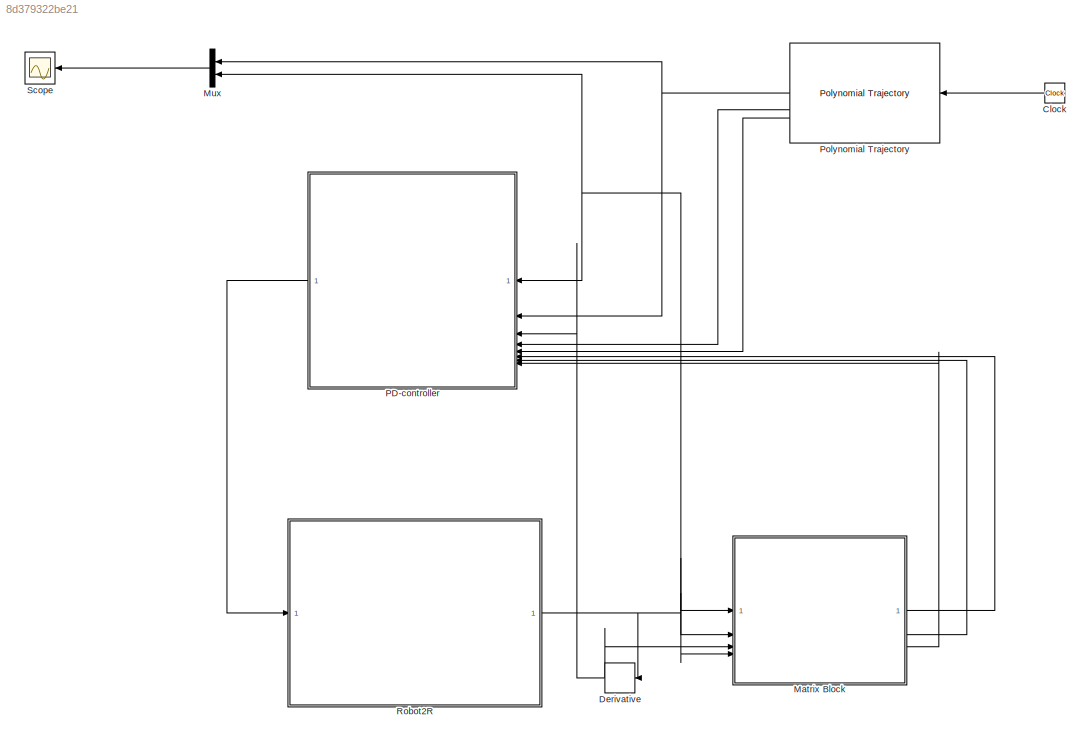
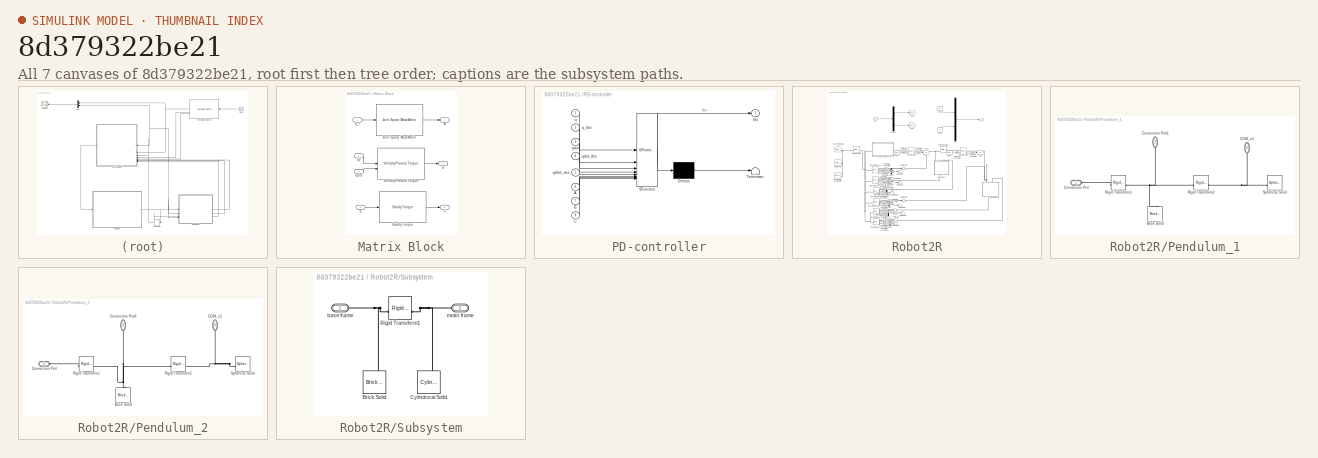
[diagram: thumbnail index - all 7 canvases of the model, root first then tree order]
MODEL slx_8d379322be21
KIND model
CONFIG AbsTol = 1e-3
CONFIG EnableMultiTasking = on
CONFIG FixedStep = auto
CONFIG MaxStep = auto
CONFIG MinStep = auto
CONFIG RelTol = 1e-3
CONFIG SampleTimeConstraint = Unconstrained
CONFIG SolverName = VariableStepAuto
CONFIG StartTime = 0.0
CONFIG StopTime = 20
BLOCK [Clock] Clock
BLOCK [Derivative] Derivative
BLOCK [SubSystem] Matrix Block
BLOCK [Outport] Matrix Block/A
BLOCK [Outport] Matrix Block/B
  Port = 2
BLOCK [Outport] Matrix Block/C
  Port = 3
BLOCK [Reference] Matrix Block/Gravity Torque  REF=robotmaniplib/Gravity Torque
  SourceBlock = robotmaniplib/Gravity Torque
  SourceType = Gravity Torque
BLOCK [Reference] Matrix Block/Joint Space Mass Matrix  REF=robotmaniplib/Joint Space Mass Matrix
  SourceBlock = robotmaniplib/Joint Space Mass Matrix
  SourceType = Joint Space Mass Matrix
BLOCK [Reference] Matrix Block/Velocity Product Torque  REF=robotmaniplib/Velocity Product Torque
  SourceBlock = robotmaniplib/Velocity Product Torque
  SourceType = Velocity Product Torque
BLOCK [Inport] Matrix Block/q
  Port = 4
BLOCK [Inport] Matrix Block/q_r
BLOCK [Inport] Matrix Block/qdot
  Port = 3
BLOCK [Inport] Matrix Block/qr
  Port = 2
BLOCK [Mux] Mux
  DisplayOption = bar
  Inputs = 2
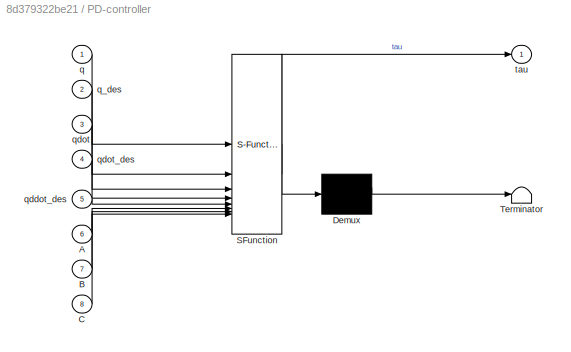
BLOCK [SubSystem] PD-controller
  ErrorFcn = Stateflow.Translate.translate
  LibrarySourceBlock = simulink/User-Defined\nFunctions/MATLAB Function
  PermitHierarchicalResolution = ExplicitOnly
  SFBlockType = MATLAB Function
  TreatAsAtomicUnit = on
BLOCK [Demux] PD-controller/ Demux 
  Outputs = 1
BLOCK [S-Function] PD-controller/ SFunction 
  EnableBusSupport = on
  FunctionName = sf_sfun
  PortCounts = [8 2]
  SFcnIsStateOwnerBlock = off
  SFunctionDeploymentMode = off
  Tag = Stateflow S-Function 1
BLOCK [Terminator] PD-controller/ Terminator 
BLOCK [Inport] PD-controller/A
  Port = 6
BLOCK [Inport] PD-controller/B
  Port = 7
BLOCK [Inport] PD-controller/C
  Port = 8
BLOCK [Inport] PD-controller/q
BLOCK [Inport] PD-controller/q_des
  Port = 2
BLOCK [Inport] PD-controller/qddot_des
  Port = 5
BLOCK [Inport] PD-controller/qdot
  Port = 3
BLOCK [Inport] PD-controller/qdot_des
  Port = 4
BLOCK [Outport] PD-controller/tau
BLOCK [Reference] Polynomial Trajectory  REF=robotcorelib/Polynomial Trajectory
  LibrarySourceBlock = robotutilslib/Polynomial Trajectory
  SourceBlock = robotcorelib/Polynomial Trajectory
  SourceType = robotics.slcore.internal.block.PolyTrajSys
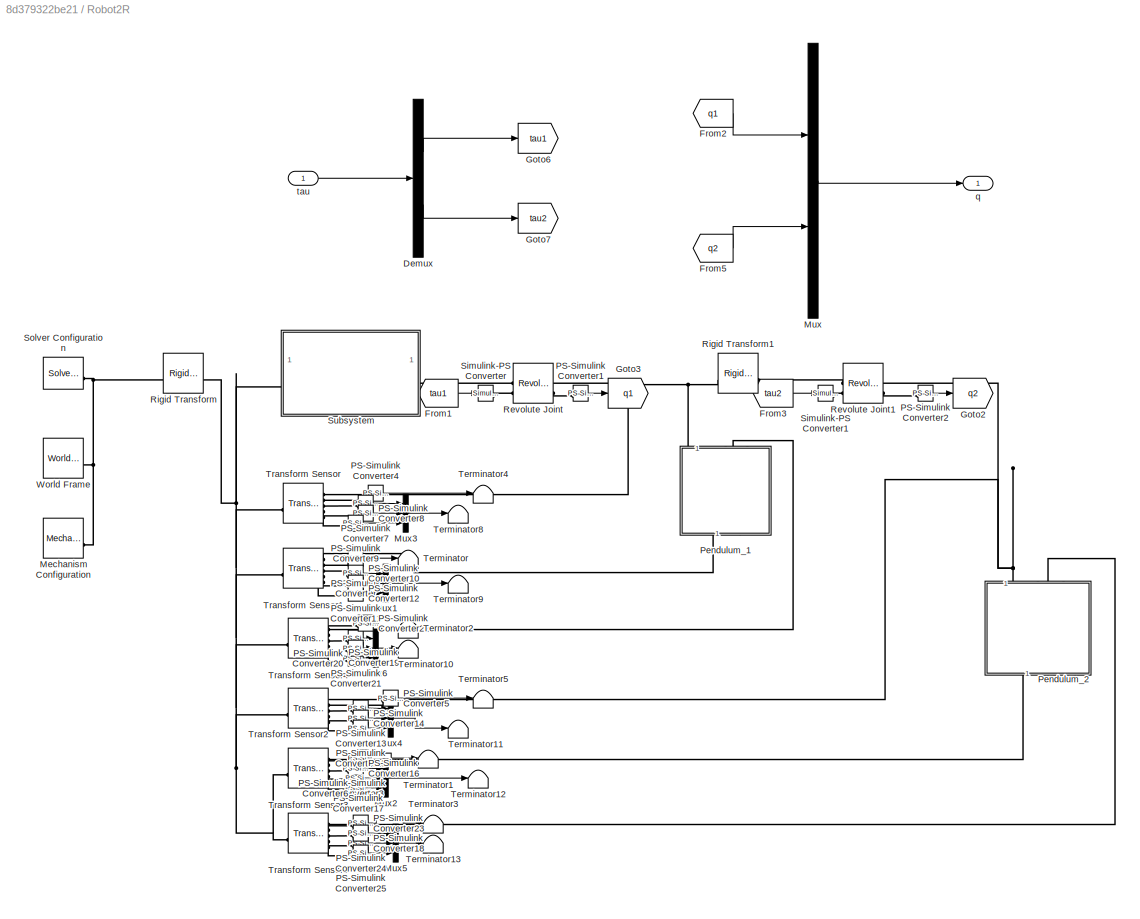
BLOCK [SubSystem] Robot2R
BLOCK [Demux] Robot2R/Demux
  Outputs = 2
BLOCK [From] Robot2R/From1
  GotoTag = tau1
BLOCK [From] Robot2R/From2
  GotoTag = q1
BLOCK [From] Robot2R/From3
  GotoTag = tau2
BLOCK [From] Robot2R/From5
  GotoTag = q2
BLOCK [Goto] Robot2R/Goto2
  GotoTag = q2
BLOCK [Goto] Robot2R/Goto3
  GotoTag = q1
BLOCK [Goto] Robot2R/Goto6
  GotoTag = tau1
BLOCK [Goto] Robot2R/Goto7
  GotoTag = tau2
BLOCK [Reference] Robot2R/Mechanism Configuration  REF=sm_lib/Utilities/Mechanism
Configuration
  SourceBlock = sm_lib/Utilities/Mechanism\nConfiguration
  SourceType = Mechanism\nConfiguration
BLOCK [Mux] Robot2R/Mux
  DisplayOption = bar
  Inputs = 2
BLOCK [Mux] Robot2R/Mux1
  DisplayOption = bar
  Inputs = 3
BLOCK [Mux] Robot2R/Mux2
  DisplayOption = bar
  Inputs = 3
BLOCK [Mux] Robot2R/Mux3
  DisplayOption = bar
  Inputs = 3
BLOCK [Mux] Robot2R/Mux4
  DisplayOption = bar
  Inputs = 3
BLOCK [Mux] Robot2R/Mux5
  DisplayOption = bar
  Inputs = 3
BLOCK [Mux] Robot2R/Mux6
  DisplayOption = bar
  Inputs = 3
BLOCK [Reference] Robot2R/PS-Simulink Converter  REF=nesl_utility/PS-Simulink
Converter
  SourceBlock = nesl_utility/PS-Simulink\nConverter
  SourceType = PS-Simulink\nConverter
BLOCK [Reference] Robot2R/PS-Simulink Converter1  REF=nesl_utility/PS-Simulink
Converter
  SourceBlock = nesl_utility/PS-Simulink\nConverter
  SourceType = PS-Simulink\nConverter
BLOCK [Reference] Robot2R/PS-Simulink Converter10  REF=nesl_utility/PS-Simulink
Converter
  SourceBlock = nesl_utility/PS-Simulink\nConverter
  SourceType = PS-Simulink\nConverter
BLOCK [Reference] Robot2R/PS-Simulink Converter11  REF=nesl_utility/PS-Simulink
Converter
  SourceBlock = nesl_utility/PS-Simulink\nConverter
  SourceType = PS-Simulink\nConverter
BLOCK [Reference] Robot2R/PS-Simulink Converter12  REF=nesl_utility/PS-Simulink
Converter
  SourceBlock = nesl_utility/PS-Simulink\nConverter
  SourceType = PS-Simulink\nConverter
BLOCK [Reference] Robot2R/PS-Simulink Converter13  REF=nesl_utility/PS-Simulink
Converter
  SourceBlock = nesl_utility/PS-Simulink\nConverter
  SourceType = PS-Simulink\nConverter
BLOCK [Reference] Robot2R/PS-Simulink Converter14  REF=nesl_utility/PS-Simulink
Converter
  SourceBlock = nesl_utility/PS-Simulink\nConverter
  SourceType = PS-Simulink\nConverter
BLOCK [Reference] Robot2R/PS-Simulink Converter15  REF=nesl_utility/PS-Simulink
Converter
  SourceBlock = nesl_utility/PS-Simulink\nConverter
  SourceType = PS-Simulink\nConverter
BLOCK [Reference] Robot2R/PS-Simulink Converter16  REF=nesl_utility/PS-Simulink
Converter
  SourceBlock = nesl_utility/PS-Simulink\nConverter
  SourceType = PS-Simulink\nConverter
BLOCK [Reference] Robot2R/PS-Simulink Converter17  REF=nesl_utility/PS-Simulink
Converter
  SourceBlock = nesl_utility/PS-Simulink\nConverter
  SourceType = PS-Simulink\nConverter
BLOCK [Reference] Robot2R/PS-Simulink Converter18  REF=nesl_utility/PS-Simulink
Converter
  SourceBlock = nesl_utility/PS-Simulink\nConverter
  SourceType = PS-Simulink\nConverter
BLOCK [Reference] Robot2R/PS-Simulink Converter19  REF=nesl_utility/PS-Simulink
Converter
  SourceBlock = nesl_utility/PS-Simulink\nConverter
  SourceType = PS-Simulink\nConverter
BLOCK [Reference] Robot2R/PS-Simulink Converter2  REF=nesl_utility/PS-Simulink
Converter
  SourceBlock = nesl_utility/PS-Simulink\nConverter
  SourceType = PS-Simulink\nConverter
BLOCK [Reference] Robot2R/PS-Simulink Converter20  REF=nesl_utility/PS-Simulink
Converter
  SourceBlock = nesl_utility/PS-Simulink\nConverter
  SourceType = PS-Simulink\nConverter
BLOCK [Reference] Robot2R/PS-Simulink Converter21  REF=nesl_utility/PS-Simulink
Converter
  SourceBlock = nesl_utility/PS-Simulink\nConverter
  SourceType = PS-Simulink\nConverter
BLOCK [Reference] Robot2R/PS-Simulink Converter22  REF=nesl_utility/PS-Simulink
Converter
  SourceBlock = nesl_utility/PS-Simulink\nConverter
  SourceType = PS-Simulink\nConverter
BLOCK [Reference] Robot2R/PS-Simulink Converter23  REF=nesl_utility/PS-Simulink
Converter
  SourceBlock = nesl_utility/PS-Simulink\nConverter
  SourceType = PS-Simulink\nConverter
BLOCK [Reference] Robot2R/PS-Simulink Converter24  REF=nesl_utility/PS-Simulink
Converter
  SourceBlock = nesl_utility/PS-Simulink\nConverter
  SourceType = PS-Simulink\nConverter
BLOCK [Reference] Robot2R/PS-Simulink Converter25  REF=nesl_utility/PS-Simulink
Converter
  SourceBlock = nesl_utility/PS-Simulink\nConverter
  SourceType = PS-Simulink\nConverter
BLOCK [Reference] Robot2R/PS-Simulink Converter3  REF=nesl_utility/PS-Simulink
Converter
  SourceBlock = nesl_utility/PS-Simulink\nConverter
  SourceType = PS-Simulink\nConverter
BLOCK [Reference] Robot2R/PS-Simulink Converter4  REF=nesl_utility/PS-Simulink
Converter
  SourceBlock = nesl_utility/PS-Simulink\nConverter
  SourceType = PS-Simulink\nConverter
BLOCK [Reference] Robot2R/PS-Simulink Converter5  REF=nesl_utility/PS-Simulink
Converter
  SourceBlock = nesl_utility/PS-Simulink\nConverter
  SourceType = PS-Simulink\nConverter
BLOCK [Reference] Robot2R/PS-Simulink Converter6  REF=nesl_utility/PS-Simulink
Converter
  SourceBlock = nesl_utility/PS-Simulink\nConverter
  SourceType = PS-Simulink\nConverter
BLOCK [Reference] Robot2R/PS-Simulink Converter7  REF=nesl_utility/PS-Simulink
Converter
  SourceBlock = nesl_utility/PS-Simulink\nConverter
  SourceType = PS-Simulink\nConverter
BLOCK [Reference] Robot2R/PS-Simulink Converter8  REF=nesl_utility/PS-Simulink
Converter
  SourceBlock = nesl_utility/PS-Simulink\nConverter
  SourceType = PS-Simulink\nConverter
BLOCK [Reference] Robot2R/PS-Simulink Converter9  REF=nesl_utility/PS-Simulink
Converter
  SourceBlock = nesl_utility/PS-Simulink\nConverter
  SourceType = PS-Simulink\nConverter
BLOCK [SubSystem] Robot2R/Pendulum_1
  NameLocation = left
BLOCK [Reference] Robot2R/Pendulum_1/Brick Solid  REF=sm_lib/Body Elements/Brick Solid
  NameLocation = right
  SourceBlock = sm_lib/Body Elements/Brick Solid
  SourceType = Brick Solid
BLOCK [PMIOPort] Robot2R/Pendulum_1/COM_s1
  NameLocation = left
  Port = 3
  Side = Left
BLOCK [PMIOPort] Robot2R/Pendulum_1/Connection Port
  Side = Left
BLOCK [PMIOPort] Robot2R/Pendulum_1/Connection Port1
  NameLocation = left
  Port = 2
  Side = Right
BLOCK [Reference] Robot2R/Pendulum_1/Rigid Transform1  REF=sm_lib/Frames and
Transforms/Rigid
Transform
  SourceBlock = sm_lib/Frames and\nTransforms/Rigid\nTransform
  SourceType = Rigid\nTransform
BLOCK [Reference] Robot2R/Pendulum_1/Rigid Transform2  REF=sm_lib/Frames and
Transforms/Rigid
Transform
  SourceBlock = sm_lib/Frames and\nTransforms/Rigid\nTransform
  SourceType = Rigid\nTransform
BLOCK [Reference] Robot2R/Pendulum_1/Spherical Solid  REF=sm_lib/Body Elements/Spherical Solid
  SourceBlock = sm_lib/Body Elements/Spherical Solid
  SourceType = Spherical Solid
BLOCK [SubSystem] Robot2R/Pendulum_2
  NameLocation = left
BLOCK [Reference] Robot2R/Pendulum_2/Brick Solid  REF=sm_lib/Body Elements/Brick Solid
  NameLocation = right
  SourceBlock = sm_lib/Body Elements/Brick Solid
  SourceType = Brick Solid
BLOCK [PMIOPort] Robot2R/Pendulum_2/COM_s2
  NameLocation = left
  Port = 3
  Side = Left
BLOCK [PMIOPort] Robot2R/Pendulum_2/Connection Port
  Side = Left
BLOCK [PMIOPort] Robot2R/Pendulum_2/Connection Port1
  NameLocation = left
  Port = 2
  Side = Right
BLOCK [Reference] Robot2R/Pendulum_2/Rigid Transform1  REF=sm_lib/Frames and
Transforms/Rigid
Transform
  SourceBlock = sm_lib/Frames and\nTransforms/Rigid\nTransform
  SourceType = Rigid\nTransform
BLOCK [Reference] Robot2R/Pendulum_2/Rigid Transform2  REF=sm_lib/Frames and
Transforms/Rigid
Transform
  SourceBlock = sm_lib/Frames and\nTransforms/Rigid\nTransform
  SourceType = Rigid\nTransform
BLOCK [Reference] Robot2R/Pendulum_2/Spherical Solid  REF=sm_lib/Body Elements/Spherical Solid
  SourceBlock = sm_lib/Body Elements/Spherical Solid
  SourceType = Spherical Solid
BLOCK [Reference] Robot2R/Revolute Joint  REF=sm_lib/Joints/Revolute Joint
  SourceBlock = sm_lib/Joints/Revolute Joint
  SourceType = Revolute Joint
BLOCK [Reference] Robot2R/Revolute Joint1  REF=sm_lib/Joints/Revolute Joint
  SourceBlock = sm_lib/Joints/Revolute Joint
  SourceType = Revolute Joint
BLOCK [Reference] Robot2R/Rigid Transform  REF=sm_lib/Frames and
Transforms/Rigid
Transform
  SourceBlock = sm_lib/Frames and\nTransforms/Rigid\nTransform
  SourceType = Rigid\nTransform
BLOCK [Reference] Robot2R/Rigid Transform1  REF=sm_lib/Frames and
Transforms/Rigid
Transform
  SourceBlock = sm_lib/Frames and\nTransforms/Rigid\nTransform
  SourceType = Rigid\nTransform
BLOCK [Reference] Robot2R/Simulink-PS Converter  REF=nesl_utility/Simulink-PS
Converter
  SourceBlock = nesl_utility/Simulink-PS\nConverter
  SourceType = Simulink-PS\nConverter
BLOCK [Reference] Robot2R/Simulink-PS Converter1  REF=nesl_utility/Simulink-PS
Converter
  SourceBlock = nesl_utility/Simulink-PS\nConverter
  SourceType = Simulink-PS\nConverter
BLOCK [Reference] Robot2R/Solver Configuration  REF=nesl_utility/Solver
Configuration
  SourceBlock = nesl_utility/Solver\nConfiguration
  SourceType = Solver\nConfiguration
BLOCK [SubSystem] Robot2R/Subsystem
BLOCK [Reference] Robot2R/Subsystem/Brick Solid  REF=sm_lib/Body Elements/Brick Solid
  SourceBlock = sm_lib/Body Elements/Brick Solid
  SourceType = Brick Solid
BLOCK [Reference] Robot2R/Subsystem/Cylindrical Solid  REF=sm_lib/Body Elements/Cylindrical Solid
  NameLocation = right
  SourceBlock = sm_lib/Body Elements/Cylindrical Solid
  SourceType = Cylindrical Solid
BLOCK [Reference] Robot2R/Subsystem/Rigid Transform1  REF=sm_lib/Frames and
Transforms/Rigid
Transform
  SourceBlock = sm_lib/Frames and\nTransforms/Rigid\nTransform
  SourceType = Rigid\nTransform
BLOCK [PMIOPort] Robot2R/Subsystem/base frame
  Side = Left
BLOCK [PMIOPort] Robot2R/Subsystem/motor frame
  Port = 2
  Side = Right
BLOCK [Terminator] Robot2R/Terminator
BLOCK [Terminator] Robot2R/Terminator1
BLOCK [Terminator] Robot2R/Terminator10
BLOCK [Terminator] Robot2R/Terminator11
BLOCK [Terminator] Robot2R/Terminator12
BLOCK [Terminator] Robot2R/Terminator13
BLOCK [Terminator] Robot2R/Terminator2
BLOCK [Terminator] Robot2R/Terminator3
BLOCK [Terminator] Robot2R/Terminator4
BLOCK [Terminator] Robot2R/Terminator5
BLOCK [Terminator] Robot2R/Terminator8
BLOCK [Terminator] Robot2R/Terminator9
BLOCK [Reference] Robot2R/Transform Sensor  REF=sm_lib/Frames and
Transforms/Transform
Sensor
  SourceBlock = sm_lib/Frames and\nTransforms/Transform\nSensor
  SourceType = Transform\nSensor
BLOCK [Reference] Robot2R/Transform Sensor1  REF=sm_lib/Frames and
Transforms/Transform
Sensor
  SourceBlock = sm_lib/Frames and\nTransforms/Transform\nSensor
  SourceType = Transform\nSensor
BLOCK [Reference] Robot2R/Transform Sensor2  REF=sm_lib/Frames and
Transforms/Transform
Sensor
  SourceBlock = sm_lib/Frames and\nTransforms/Transform\nSensor
  SourceType = Transform\nSensor
BLOCK [Reference] Robot2R/Transform Sensor3  REF=sm_lib/Frames and
Transforms/Transform
Sensor
  SourceBlock = sm_lib/Frames and\nTransforms/Transform\nSensor
  SourceType = Transform\nSensor
BLOCK [Reference] Robot2R/Transform Sensor4  REF=sm_lib/Frames and
Transforms/Transform
Sensor
  SourceBlock = sm_lib/Frames and\nTransforms/Transform\nSensor
  SourceType = Transform\nSensor
BLOCK [Reference] Robot2R/Transform Sensor5  REF=sm_lib/Frames and
Transforms/Transform
Sensor
  SourceBlock = sm_lib/Frames and\nTransforms/Transform\nSensor
  SourceType = Transform\nSensor
BLOCK [Reference] Robot2R/World Frame  REF=sm_lib/Frames and
Transforms/World Frame
  SourceBlock = sm_lib/Frames and\nTransforms/World Frame
  SourceType = World Frame
BLOCK [Outport] Robot2R/q
BLOCK [Inport] Robot2R/tau
BLOCK [Scope] Scope
  Floating = off
  NumInputPorts = 1
  ScopeSpecificationString = Simulink.scopes.TimeScopeBlockCfg('CurrentConfiguration', extmgr.ConfigurationSet(extmgr.Configuration('Core','General UI',true),extmgr.Configuration('Core','Source UI',true),extmgr.Configuration('Sources','WiredSimulink',true),extmgr.Configuration('Visuals','Time Domain',true,'SerializedDisplays',{struct('MinYLimReal','-1.21085','MaxYLimReal','3.04366','YLabelReal','','MinYLimMag','0.00000','MaxY...<+1544ch>
LINE Clock:1 -> Polynomial Trajectory:1
NET Derivative:1 -> Matrix Block:3, PD-controller:3
LINE Matrix Block/Gravity Torque:1 -> Matrix Block/C:1
LINE Matrix Block/Joint Space Mass Matrix:1 -> Matrix Block/A:1
LINE Matrix Block/Velocity Product Torque:1 -> Matrix Block/B:1
LINE Matrix Block/q:1 -> Matrix Block/Gravity Torque:1
LINE Matrix Block/q_r:1 -> Matrix Block/Joint Space Mass Matrix:1
LINE Matrix Block/qdot:1 -> Matrix Block/Velocity Product Torque:2
LINE Matrix Block/qr:1 -> Matrix Block/Velocity Product Torque:1
LINE Matrix Block:1 -> PD-controller:6
LINE Matrix Block:2 -> PD-controller:7
LINE Matrix Block:3 -> PD-controller:8
LINE Mux:1 -> Scope:1
LINE PD-controller:1 -> Robot2R:1
NET Polynomial Trajectory:1 -> Mux:1, PD-controller:2
LINE Polynomial Trajectory:2 -> PD-controller:4
LINE Polynomial Trajectory:3 -> PD-controller:5
LINE Robot2R/Demux:1 -> Robot2R/Goto6:1
LINE Robot2R/Demux:2 -> Robot2R/Goto7:1
LINE Robot2R/From1:1 -> Robot2R/Simulink-PS Converter:1
LINE Robot2R/From2:1 -> Robot2R/Mux:1
LINE Robot2R/From3:1 -> Robot2R/Simulink-PS Converter1:1
LINE Robot2R/From5:1 -> Robot2R/Mux:2
LINE Robot2R/Mux1:1 -> Robot2R/Terminator9:1
LINE Robot2R/Mux2:1 -> Robot2R/Terminator12:1
LINE Robot2R/Mux3:1 -> Robot2R/Terminator8:1
LINE Robot2R/Mux4:1 -> Robot2R/Terminator11:1
LINE Robot2R/Mux5:1 -> Robot2R/Terminator13:1
LINE Robot2R/Mux6:1 -> Robot2R/Terminator10:1
LINE Robot2R/Mux:1 -> Robot2R/q:1
LINE Robot2R/PS-Simulink Converter10:1 -> Robot2R/Mux1:1
LINE Robot2R/PS-Simulink Converter11:1 -> Robot2R/Mux1:2
LINE Robot2R/PS-Simulink Converter12:1 -> Robot2R/Mux1:3
LINE Robot2R/PS-Simulink Converter13:1 -> Robot2R/Mux4:1
LINE Robot2R/PS-Simulink Converter14:1 -> Robot2R/Mux4:2
LINE Robot2R/PS-Simulink Converter15:1 -> Robot2R/Mux4:3
LINE Robot2R/PS-Simulink Converter16:1 -> Robot2R/Mux2:1
LINE Robot2R/PS-Simulink Converter17:1 -> Robot2R/Mux2:2
LINE Robot2R/PS-Simulink Converter18:1 -> Robot2R/Mux5:2
LINE Robot2R/PS-Simulink Converter19:1 -> Robot2R/Mux6:1
LINE Robot2R/PS-Simulink Converter1:1 -> Robot2R/Goto3:1
LINE Robot2R/PS-Simulink Converter20:1 -> Robot2R/Mux6:3
LINE Robot2R/PS-Simulink Converter21:1 -> Robot2R/Mux6:2
LINE Robot2R/PS-Simulink Converter22:1 -> Robot2R/Terminator2:1
LINE Robot2R/PS-Simulink Converter23:1 -> Robot2R/Terminator3:1
LINE Robot2R/PS-Simulink Converter24:1 -> Robot2R/Mux5:1
LINE Robot2R/PS-Simulink Converter25:1 -> Robot2R/Mux5:3
LINE Robot2R/PS-Simulink Converter2:1 -> Robot2R/Goto2:1
LINE Robot2R/PS-Simulink Converter3:1 -> Robot2R/Terminator1:1
LINE Robot2R/PS-Simulink Converter4:1 -> Robot2R/Terminator4:1
LINE Robot2R/PS-Simulink Converter5:1 -> Robot2R/Terminator5:1
LINE Robot2R/PS-Simulink Converter6:1 -> Robot2R/Mux2:3
LINE Robot2R/PS-Simulink Converter7:1 -> Robot2R/Mux3:1
LINE Robot2R/PS-Simulink Converter8:1 -> Robot2R/Mux3:2
LINE Robot2R/PS-Simulink Converter9:1 -> Robot2R/Mux3:3
LINE Robot2R/PS-Simulink Converter:1 -> Robot2R/Terminator:1
LINE Robot2R/tau:1 -> Robot2R/Demux:1
NET Robot2R:1 -> Derivative:1, Matrix Block:1, Matrix Block:2, Matrix Block:4, Mux:2, PD-controller:1
PNET net1: Robot2R/Mechanism Configuration:RConn1 -- Robot2R/Rigid Transform:LConn1 -- Robot2R/Solver Configuration:RConn1 -- Robot2R/World Frame:RConn1
PLINE Robot2R/PS-Simulink Converter10:LConn1 -- Robot2R/Transform Sensor1:RConn3
PLINE Robot2R/PS-Simulink Converter11:LConn1 -- Robot2R/Transform Sensor1:RConn4
PLINE Robot2R/PS-Simulink Converter12:LConn1 -- Robot2R/Transform Sensor1:RConn5
PLINE Robot2R/PS-Simulink Converter13:LConn1 -- Robot2R/Transform Sensor2:RConn3
PLINE Robot2R/PS-Simulink Converter14:LConn1 -- Robot2R/Transform Sensor2:RConn4
PLINE Robot2R/PS-Simulink Converter15:LConn1 -- Robot2R/Transform Sensor2:RConn5
PLINE Robot2R/PS-Simulink Converter16:LConn1 -- Robot2R/Transform Sensor3:RConn3
PLINE Robot2R/PS-Simulink Converter17:LConn1 -- Robot2R/Transform Sensor3:RConn4
PLINE Robot2R/PS-Simulink Converter18:LConn1 -- Robot2R/Transform Sensor5:RConn4
PLINE Robot2R/PS-Simulink Converter19:LConn1 -- Robot2R/Transform Sensor4:RConn3
PLINE Robot2R/PS-Simulink Converter1:LConn1 -- Robot2R/Revolute Joint:RConn2
PLINE Robot2R/PS-Simulink Converter20:LConn1 -- Robot2R/Transform Sensor4:RConn5
PLINE Robot2R/PS-Simulink Converter21:LConn1 -- Robot2R/Transform Sensor4:RConn4
PLINE Robot2R/PS-Simulink Converter22:LConn1 -- Robot2R/Transform Sensor4:RConn2
PLINE Robot2R/PS-Simulink Converter23:LConn1 -- Robot2R/Transform Sensor5:RConn2
PLINE Robot2R/PS-Simulink Converter24:LConn1 -- Robot2R/Transform Sensor5:RConn3
PLINE Robot2R/PS-Simulink Converter25:LConn1 -- Robot2R/Transform Sensor5:RConn5
PLINE Robot2R/PS-Simulink Converter2:LConn1 -- Robot2R/Revolute Joint1:RConn2
PLINE Robot2R/PS-Simulink Converter3:LConn1 -- Robot2R/Transform Sensor3:RConn2
PLINE Robot2R/PS-Simulink Converter4:LConn1 -- Robot2R/Transform Sensor:RConn2
PLINE Robot2R/PS-Simulink Converter5:LConn1 -- Robot2R/Transform Sensor2:RConn2
PLINE Robot2R/PS-Simulink Converter6:LConn1 -- Robot2R/Transform Sensor3:RConn5
PLINE Robot2R/PS-Simulink Converter7:LConn1 -- Robot2R/Transform Sensor:RConn3
PLINE Robot2R/PS-Simulink Converter8:LConn1 -- Robot2R/Transform Sensor:RConn4
PLINE Robot2R/PS-Simulink Converter9:LConn1 -- Robot2R/Transform Sensor:RConn5
PLINE Robot2R/PS-Simulink Converter:LConn1 -- Robot2R/Transform Sensor1:RConn2
PNET net2: Robot2R/Pendulum_1/Brick Solid:RConn1 -- Robot2R/Pendulum_1/Connection Port1:RConn1 -- Robot2R/Pendulum_1/Rigid Transform1:LConn1 -- Robot2R/Pendulum_1/Rigid Transform2:LConn1
PNET net3: Robot2R/Pendulum_1/COM_s1:RConn1 -- Robot2R/Pendulum_1/Rigid Transform2:RConn1 -- Robot2R/Pendulum_1/Spherical Solid:RConn1
PLINE Robot2R/Pendulum_1/Connection Port:RConn1 -- Robot2R/Pendulum_1/Rigid Transform1:RConn1
PNET net4: Robot2R/Pendulum_1:LConn1 -- Robot2R/Revolute Joint:RConn1 -- Robot2R/Rigid Transform1:LConn1 -- Robot2R/Transform Sensor:RConn1
PLINE Robot2R/Pendulum_1:LConn2 -- Robot2R/Transform Sensor4:RConn1
PLINE Robot2R/Pendulum_1:RConn1 -- Robot2R/Transform Sensor1:RConn1
PNET net5: Robot2R/Pendulum_2/Brick Solid:RConn1 -- Robot2R/Pendulum_2/Connection Port1:RConn1 -- Robot2R/Pendulum_2/Rigid Transform1:LConn1 -- Robot2R/Pendulum_2/Rigid Transform2:LConn1
PNET net6: Robot2R/Pendulum_2/COM_s2:RConn1 -- Robot2R/Pendulum_2/Rigid Transform2:RConn1 -- Robot2R/Pendulum_2/Spherical Solid:RConn1
PLINE Robot2R/Pendulum_2/Connection Port:RConn1 -- Robot2R/Pendulum_2/Rigid Transform1:RConn1
PNET net7: Robot2R/Pendulum_2:LConn1 -- Robot2R/Revolute Joint1:RConn1 -- Robot2R/Transform Sensor2:RConn1
PLINE Robot2R/Pendulum_2:LConn2 -- Robot2R/Transform Sensor5:RConn1
PLINE Robot2R/Pendulum_2:RConn1 -- Robot2R/Transform Sensor3:RConn1
PLINE Robot2R/Revolute Joint1:LConn1 -- Robot2R/Rigid Transform1:RConn1
PLINE Robot2R/Revolute Joint1:LConn2 -- Robot2R/Simulink-PS Converter1:RConn1
PLINE Robot2R/Revolute Joint:LConn1 -- Robot2R/Subsystem:RConn1
PLINE Robot2R/Revolute Joint:LConn2 -- Robot2R/Simulink-PS Converter:RConn1
PNET net8: Robot2R/Rigid Transform:RConn1 -- Robot2R/Subsystem:LConn1 -- Robot2R/Transform Sensor1:LConn1 -- Robot2R/Transform Sensor2:LConn1 -- Robot2R/Transform Sensor3:LConn1 -- Robot2R/Transform Sensor4:LConn1 -- Robot2R/Transform Sensor5:LConn1 -- Robot2R/Transform Sensor:LConn1
PNET net9: Robot2R/Subsystem/Brick Solid:RConn1 -- Robot2R/Subsystem/Rigid Transform1:LConn1 -- Robot2R/Subsystem/base frame:RConn1
PNET net10: Robot2R/Subsystem/Cylindrical Solid:RConn1 -- Robot2R/Subsystem/Rigid Transform1:RConn1 -- Robot2R/Subsystem/motor frame:RConn1
note: NET lines group one-source signal fan-out (src -> all destinations, sorted); 1:1 wires keep LINE; PNET lines group multi-terminal physical nets as a canonical sorted terminal list (undirected conserving connections); 2-terminal nets keep the pairwise PLINE form
CHART PD-controller states=1 transitions=1
  STATE_LABEL 'eML_blk_kernel()'
  STATE_LABEL 'SCRIPT:\nfunction tau = fcn(q, q_des, qdot, qdot_des, qddot_des, A,B,C)\n\nKp = 102;\nKd = 12;\n\n\ntau = A * (qddot_des + Kp*(q_des - q) + Kd*(qdot_des - qdot)) + B + C;\n'
CHART  states=0 transitions=0
